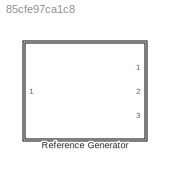
MODEL slx_85cfe97ca1c8
KIND model
CONFIG AbsTol = auto
CONFIG EnableMultiTasking = off
CONFIG FixedStep = auto
CONFIG MaxStep = auto
CONFIG MinStep = auto
CONFIG RelTol = 1e-3
CONFIG SampleTimeConstraint = Unconstrained
CONFIG Solver = VariableStepAuto
CONFIG SolverName = VariableStepAuto
CONFIG StartTime = 0.0
CONFIG StopTime = 10.0
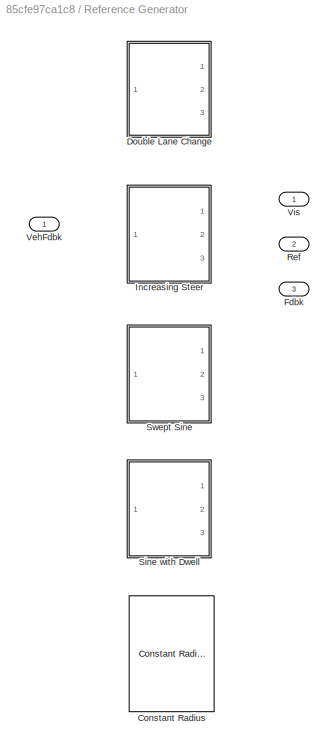
BLOCK [SubSystem] Reference Generator
  LabelModeActiveChoice = 4
  Ports = [1, 3]
  RequestExecContextInheritance = off
  Variant = on
  VariantControl = Variant1
  VariantControlMode = Label
BLOCK [Outport] Reference Generator/ Fdbk
  Port = 3
  VectorParamsAs1DForOutWhenUnconnected = off
BLOCK [Outport] Reference Generator/ Ref
  Port = 2
  VectorParamsAs1DForOutWhenUnconnected = off
BLOCK [Outport] Reference Generator/ Vis
  VectorParamsAs1DForOutWhenUnconnected = off
BLOCK [Reference] Reference Generator/Constant Radius  REF=vehdynlibscenariocommon/Constant Radius
  Ports = [1, 3]
  SourceBlock = vehdynlibscenariocommon/Constant Radius
  SourceProductBaseCode = VE
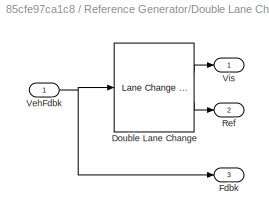
BLOCK [SubSystem] Reference Generator/Double Lane Change
  Ports = [1, 3]
  RequestExecContextInheritance = off
  VariantControl = 0
BLOCK [Outport] Reference Generator/Double Lane Change/ Fdbk
  Port = 3
  VectorParamsAs1DForOutWhenUnconnected = off
BLOCK [Outport] Reference Generator/Double Lane Change/ Ref
  Port = 2
  VectorParamsAs1DForOutWhenUnconnected = off
BLOCK [Outport] Reference Generator/Double Lane Change/ Vis
  VectorParamsAs1DForOutWhenUnconnected = off
BLOCK [Reference] Reference Generator/Double Lane Change/Double Lane Change  REF=vehdynlibscenariocommon/Lane Change Reference
Generator
  Ports = [1, 2]
  SourceBlock = vehdynlibscenariocommon/Lane Change Reference\nGenerator
  SourceProductBaseCode = VE
  SourceType = Double Lane Change Source
BLOCK [Inport] Reference Generator/Double Lane Change/VehFdbk 
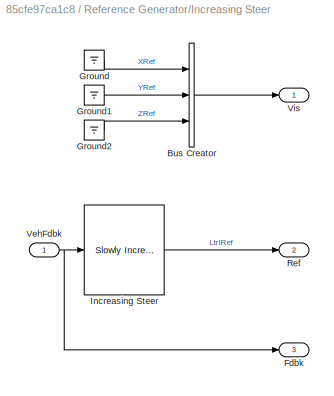
BLOCK [SubSystem] Reference Generator/Increasing Steer
  Ports = [1, 3]
  RequestExecContextInheritance = off
  VariantControl = 1
BLOCK [Outport] Reference Generator/Increasing Steer/ Fdbk
  Port = 3
  VectorParamsAs1DForOutWhenUnconnected = off
BLOCK [Outport] Reference Generator/Increasing Steer/ Ref
  Port = 2
  VectorParamsAs1DForOutWhenUnconnected = off
BLOCK [Outport] Reference Generator/Increasing Steer/ Vis
  VectorParamsAs1DForOutWhenUnconnected = off
BLOCK [BusCreator] Reference Generator/Increasing Steer/Bus Creator
  DisplayOption = bar
  InheritFromInputs = on
  Inputs = 3
  Ports = [3, 1]
BLOCK [Ground] Reference Generator/Increasing Steer/Ground
BLOCK [Ground] Reference Generator/Increasing Steer/Ground1
BLOCK [Ground] Reference Generator/Increasing Steer/Ground2
BLOCK [Reference] Reference Generator/Increasing Steer/Increasing Steer  REF=vehdynlibscenariocommon/Slowly Increasing Steer
  Ports = [1, 1]
  SourceBlock = vehdynlibscenariocommon/Slowly Increasing Steer
  SourceProductBaseCode = VE
  SourceType = Slowly Increasing Steer Maneuver
BLOCK [Inport] Reference Generator/Increasing Steer/VehFdbk 
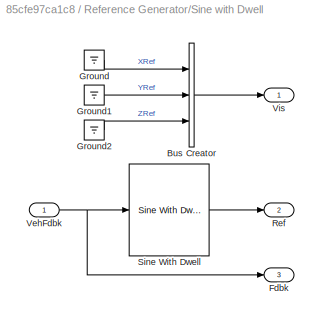
BLOCK [SubSystem] Reference Generator/Sine with Dwell
  Ports = [1, 3]
  RequestExecContextInheritance = off
  VariantControl = 3
BLOCK [Outport] Reference Generator/Sine with Dwell/ Fdbk
  Port = 3
  VectorParamsAs1DForOutWhenUnconnected = off
BLOCK [Outport] Reference Generator/Sine with Dwell/ Ref
  Port = 2
  VectorParamsAs1DForOutWhenUnconnected = off
BLOCK [Outport] Reference Generator/Sine with Dwell/ Vis
  VectorParamsAs1DForOutWhenUnconnected = off
BLOCK [BusCreator] Reference Generator/Sine with Dwell/Bus Creator
  DisplayOption = bar
  InheritFromInputs = on
  Inputs = 3
  Ports = [3, 1]
BLOCK [Ground] Reference Generator/Sine with Dwell/Ground
BLOCK [Ground] Reference Generator/Sine with Dwell/Ground1
BLOCK [Ground] Reference Generator/Sine with Dwell/Ground2
BLOCK [Reference] Reference Generator/Sine with Dwell/Sine With Dwell  REF=vehdynlibscenariocommon/Sine With Dwell
  Ports = [1, 1]
  SourceBlock = vehdynlibscenariocommon/Sine With Dwell
  SourceProductBaseCode = VE
  SourceType = Sine With Dwell
BLOCK [Inport] Reference Generator/Sine with Dwell/VehFdbk 
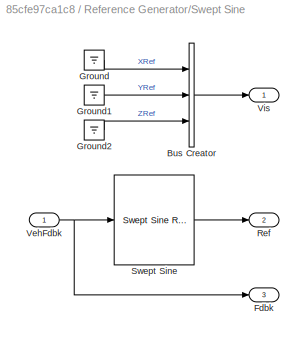
BLOCK [SubSystem] Reference Generator/Swept Sine
  Ports = [1, 3]
  RequestExecContextInheritance = off
  VariantControl = 2
BLOCK [Outport] Reference Generator/Swept Sine/ Fdbk
  Port = 3
  VectorParamsAs1DForOutWhenUnconnected = off
BLOCK [Outport] Reference Generator/Swept Sine/ Ref
  Port = 2
  VectorParamsAs1DForOutWhenUnconnected = off
BLOCK [Outport] Reference Generator/Swept Sine/ Vis
  VectorParamsAs1DForOutWhenUnconnected = off
BLOCK [BusCreator] Reference Generator/Swept Sine/Bus Creator
  DisplayOption = bar
  InheritFromInputs = on
  Inputs = 3
  Ports = [3, 1]
BLOCK [Ground] Reference Generator/Swept Sine/Ground
BLOCK [Ground] Reference Generator/Swept Sine/Ground1
BLOCK [Ground] Reference Generator/Swept Sine/Ground2
BLOCK [Reference] Reference Generator/Swept Sine/Swept Sine  REF=vehdynlibscenariocommon/Swept Sine Reference
Generator
  Ports = [1, 1]
  SourceBlock = vehdynlibscenariocommon/Swept Sine Reference\nGenerator
  SourceProductBaseCode = VE
  SourceType = Swept Sine Steer
BLOCK [Inport] Reference Generator/Swept Sine/VehFdbk 
BLOCK [Inport] Reference Generator/VehFdbk 
LINE Reference Generator/Double Lane Change/Double Lane Change:1 -> Reference Generator/Double Lane Change/ Vis:1
LINE Reference Generator/Double Lane Change/Double Lane Change:2 -> Reference Generator/Double Lane Change/ Ref:1
NET Reference Generator/Double Lane Change/VehFdbk :1 -> Reference Generator/Double Lane Change/ Fdbk:1, Reference Generator/Double Lane Change/Double Lane Change:1
LINE Reference Generator/Increasing Steer/Bus Creator:1 -> Reference Generator/Increasing Steer/ Vis:1
LINE Reference Generator/Increasing Steer/Ground1:1 -> Reference Generator/Increasing Steer/Bus Creator:2
LINE Reference Generator/Increasing Steer/Ground2:1 -> Reference Generator/Increasing Steer/Bus Creator:3
LINE Reference Generator/Increasing Steer/Ground:1 -> Reference Generator/Increasing Steer/Bus Creator:1
LINE Reference Generator/Increasing Steer/Increasing Steer:1 -> Reference Generator/Increasing Steer/ Ref:1
NET Reference Generator/Increasing Steer/VehFdbk :1 -> Reference Generator/Increasing Steer/ Fdbk:1, Reference Generator/Increasing Steer/Increasing Steer:1
LINE Reference Generator/Sine with Dwell/Bus Creator:1 -> Reference Generator/Sine with Dwell/ Vis:1
LINE Reference Generator/Sine with Dwell/Ground1:1 -> Reference Generator/Sine with Dwell/Bus Creator:2
LINE Reference Generator/Sine with Dwell/Ground2:1 -> Reference Generator/Sine with Dwell/Bus Creator:3
LINE Reference Generator/Sine with Dwell/Ground:1 -> Reference Generator/Sine with Dwell/Bus Creator:1
LINE Reference Generator/Sine with Dwell/Sine With Dwell:1 -> Reference Generator/Sine with Dwell/ Ref:1
NET Reference Generator/Sine with Dwell/VehFdbk :1 -> Reference Generator/Sine with Dwell/ Fdbk:1, Reference Generator/Sine with Dwell/Sine With Dwell:1
LINE Reference Generator/Swept Sine/Bus Creator:1 -> Reference Generator/Swept Sine/ Vis:1
LINE Reference Generator/Swept Sine/Ground1:1 -> Reference Generator/Swept Sine/Bus Creator:2
LINE Reference Generator/Swept Sine/Ground2:1 -> Reference Generator/Swept Sine/Bus Creator:3
LINE Reference Generator/Swept Sine/Ground:1 -> Reference Generator/Swept Sine/Bus Creator:1
LINE Reference Generator/Swept Sine/Swept Sine:1 -> Reference Generator/Swept Sine/ Ref:1
NET Reference Generator/Swept Sine/VehFdbk :1 -> Reference Generator/Swept Sine/ Fdbk:1, Reference Generator/Swept Sine/Swept Sine:1
note: NET lines group one-source signal fan-out (src -> all destinations, sorted); 1:1 wires keep LINE
